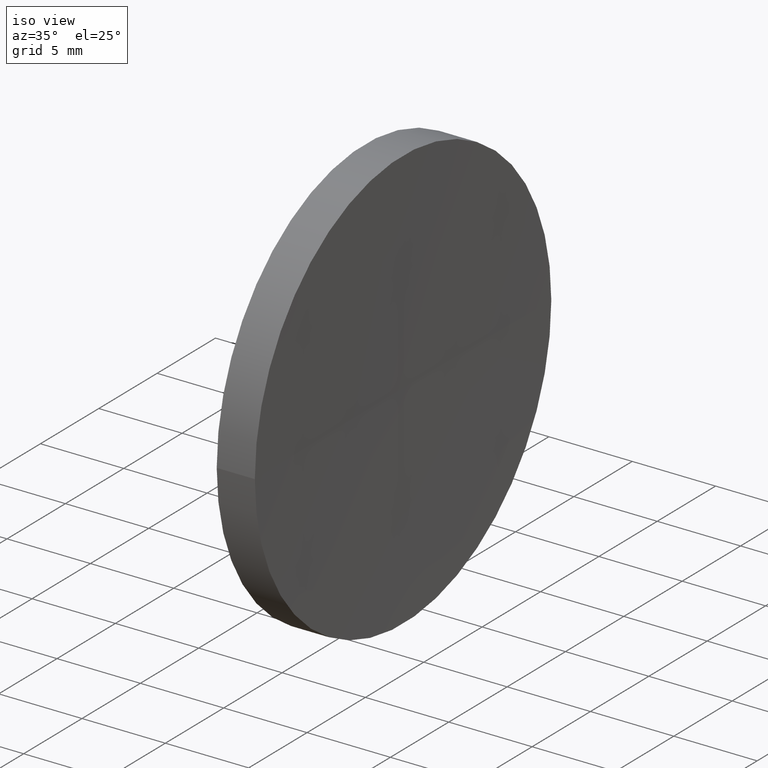
[diagram: clean part render]
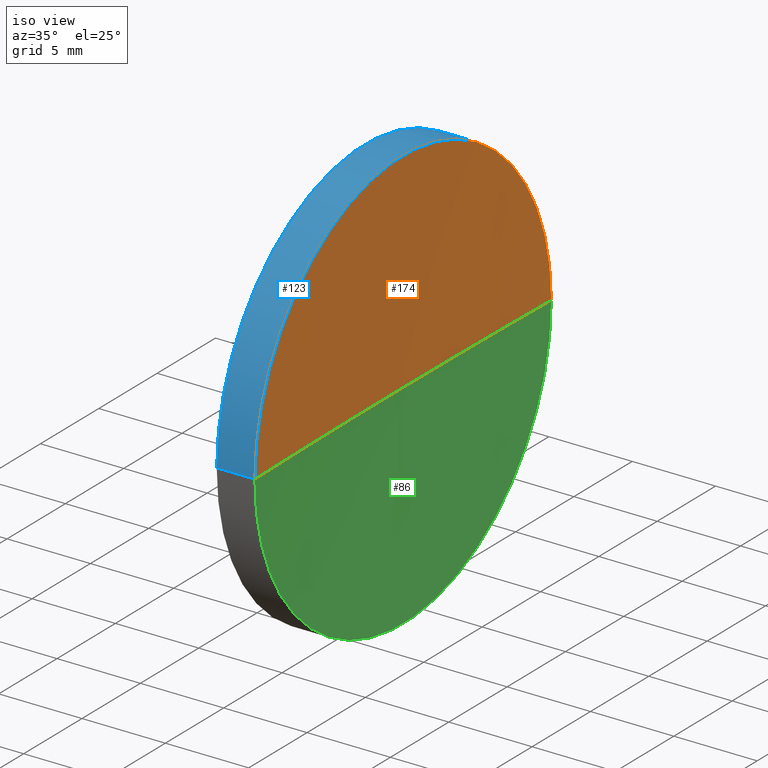
[diagram: same view with three faces highlighted in distinct colors, each labeled with its STEP entity id]
A machine part, iso view with three faces highlighted in distinct colors.
Their STEP definitions:

[orange] entity #174 — the highlighted spherical surface has radius 561.6 mm.
#4 = DIRECTION ( 'NONE',  ( 1.000000000000000000, 0.0000000000000000000, 0.0000000000000000000 ) ) ;
#5 = FACE_OUTER_BOUND ( 'NONE', #9, .T. ) ;
#9 = EDGE_LOOP ( 'NONE', ( #58, #71, #144 ) ) ;
#14 = EDGE_CURVE ( 'NONE', #94, #39, #139, .T. ) ;
#24 = CIRCLE ( 'NONE', #57, 12.70000000000007900 ) ;
#25 = CARTESIAN_POINT ( 'NONE',  ( 97.23406135539724500, 64.87808229838934400, 0.0000000000000000000 ) ) ;
#32 = CARTESIAN_POINT ( 'NONE',  ( 658.6904443452072000, 52.17808229838973200, 0.0000000000000000000 ) ) ;
#39 = VERTEX_POINT ( 'NONE', #128 ) ;
#56 = AXIS2_PLACEMENT_3D ( 'NONE', #192, #179, #133 ) ;
#57 = AXIS2_PLACEMENT_3D ( 'NONE', #183, #152, #78 ) ;
#58 = ORIENTED_EDGE ( 'NONE', *, *, #88, .F. ) ;
#71 = ORIENTED_EDGE ( 'NONE', *, *, #101, .T. ) ;
#75 = AXIS2_PLACEMENT_3D ( 'NONE', #32, #79, #4 ) ;
#78 = DIRECTION ( 'NONE',  ( 0.0000000000000000000, -1.000000000000000000, 0.0000000000000000000 ) ) ;
#79 = DIRECTION ( 'NONE',  ( 0.0000000000000000000, -0.0000000000000000000, 1.000000000000000000 ) ) ;
#81 = CIRCLE ( 'NONE', #175, 561.6000000000001400 ) ;
#85 = VERTEX_POINT ( 'NONE', #190 ) ;
#88 = EDGE_CURVE ( 'NONE', #85, #94, #24, .T. ) ;
#94 = VERTEX_POINT ( 'NONE', #25 ) ;
#101 = EDGE_CURVE ( 'NONE', #85, #39, #81, .T. ) ;
#107 = DIRECTION ( 'NONE',  ( 0.0000000000000000000, 1.000000000000000000, 1.224646799147353200E-016 ) ) ;
#121 = CARTESIAN_POINT ( 'NONE',  ( 658.6904443452072000, 52.17808229838973200, 0.0000000000000000000 ) ) ;
#128 = CARTESIAN_POINT ( 'NONE',  ( 97.09044434520708900, 52.17808229838949100, 0.0000000000000000000 ) ) ;
#133 = DIRECTION ( 'NONE',  ( -3.953785700232038400E-016, 1.000000000000000000, 0.0000000000000000000 ) ) ;
#136 = SPHERICAL_SURFACE ( 'NONE', #56, 561.6000000000001400 ) ;
#139 = CIRCLE ( 'NONE', #75, 561.6000000000000200 ) ;
#144 = ORIENTED_EDGE ( 'NONE', *, *, #14, .F. ) ;
#152 = DIRECTION ( 'NONE',  ( -1.000000000000000000, -4.877362175853829600E-016, -0.0000000000000000000 ) ) ;
#170 = DIRECTION ( 'NONE',  ( -5.973045976941762700E-032, 1.224646799147353200E-016, -1.000000000000000000 ) ) ;
#174 = ADVANCED_FACE ( 'NONE', ( #5 ), #136, .F. ) ;
#175 = AXIS2_PLACEMENT_3D ( 'NONE', #121, #170, #107 ) ;
#179 = DIRECTION ( 'NONE',  ( 0.0000000000000000000, 0.0000000000000000000, -1.000000000000000000 ) ) ;
#183 = CARTESIAN_POINT ( 'NONE',  ( 97.23406135539724500, 52.17808229838991700, 0.0000000000000000000 ) ) ;
#190 = CARTESIAN_POINT ( 'NONE',  ( 97.23406135539724500, 39.47808229839003500, -1.555301434917068800E-015 ) ) ;
#192 = CARTESIAN_POINT ( 'NONE',  ( 658.6904443452072000, 52.17808229838973200, 0.0000000000000000000 ) ) ;

[blue] entity #123 — the highlighted cylindrical surface (partial cylindrical patch) has radius 12.7 mm, axis along (-1, -0, -0).
#6 = DIRECTION ( 'NONE',  ( -1.000000000000000000, -4.877362175853829600E-016, -0.0000000000000000000 ) ) ;
#18 = DIRECTION ( 'NONE',  ( 0.0000000000000000000, -1.000000000000000000, 0.0000000000000000000 ) ) ;
#23 = AXIS2_PLACEMENT_3D ( 'NONE', #84, #6, #18 ) ;
#24 = CIRCLE ( 'NONE', #57, 12.70000000000007900 ) ;
#25 = CARTESIAN_POINT ( 'NONE',  ( 97.23406135539724500, 64.87808229838934400, 0.0000000000000000000 ) ) ;
#29 = AXIS2_PLACEMENT_3D ( 'NONE', #132, #111, #177 ) ;
#30 = CYLINDRICAL_SURFACE ( 'NONE', #29, 12.70000000000000300 ) ;
#36 = CARTESIAN_POINT ( 'NONE',  ( 89.85865645361708700, 39.47808229838990700, 0.0000000000000000000 ) ) ;
#40 = VERTEX_POINT ( 'NONE', #188 ) ;
#47 = LINE ( 'NONE', #36, #106 ) ;
#54 = EDGE_CURVE ( 'NONE', #40, #184, #99, .T. ) ;
#57 = AXIS2_PLACEMENT_3D ( 'NONE', #183, #152, #78 ) ;
#76 = ORIENTED_EDGE ( 'NONE', *, *, #80, .F. ) ;
#78 = DIRECTION ( 'NONE',  ( 0.0000000000000000000, -1.000000000000000000, 0.0000000000000000000 ) ) ;
#80 = EDGE_CURVE ( 'NONE', #85, #40, #47, .T. ) ;
#84 = CARTESIAN_POINT ( 'NONE',  ( 94.94682658132261100, 52.17808229838991000, 0.0000000000000000000 ) ) ;
#85 = VERTEX_POINT ( 'NONE', #190 ) ;
#88 = EDGE_CURVE ( 'NONE', #85, #94, #24, .T. ) ;
#94 = VERTEX_POINT ( 'NONE', #25 ) ;
#99 = CIRCLE ( 'NONE', #23, 12.70000000000000300 ) ;
#100 = DIRECTION ( 'NONE',  ( -1.000000000000000000, -4.877362175853829600E-016, -0.0000000000000000000 ) ) ;
#104 = CARTESIAN_POINT ( 'NONE',  ( 89.85865645361708700, 64.87808229838991300, 1.555301434917138800E-015 ) ) ;
#106 = VECTOR ( 'NONE', #100, 1000.000000000000000 ) ;
#108 = FACE_OUTER_BOUND ( 'NONE', #143, .T. ) ;
#111 = DIRECTION ( 'NONE',  ( -1.000000000000000000, -4.877362175853829600E-016, -0.0000000000000000000 ) ) ;
#113 = ORIENTED_EDGE ( 'NONE', *, *, #88, .T. ) ;
#123 = ADVANCED_FACE ( 'NONE', ( #108 ), #30, .T. ) ;
#130 = DIRECTION ( 'NONE',  ( -1.000000000000000000, -4.877362175853829600E-016, -0.0000000000000000000 ) ) ;
#132 = CARTESIAN_POINT ( 'NONE',  ( 89.85865645361708700, 52.17808229838991000, 0.0000000000000000000 ) ) ;
#141 = ORIENTED_EDGE ( 'NONE', *, *, #54, .F. ) ;
#143 = EDGE_LOOP ( 'NONE', ( #113, #157, #141, #76 ) ) ;
#145 = CARTESIAN_POINT ( 'NONE',  ( 94.94682658132265400, 64.87808229838628900, 0.0000000000000000000 ) ) ;
#152 = DIRECTION ( 'NONE',  ( -1.000000000000000000, -4.877362175853829600E-016, -0.0000000000000000000 ) ) ;
#157 = ORIENTED_EDGE ( 'NONE', *, *, #182, .T. ) ;
#163 = LINE ( 'NONE', #104, #181 ) ;
#177 = DIRECTION ( 'NONE',  ( 0.0000000000000000000, -1.000000000000000000, 0.0000000000000000000 ) ) ;
#181 = VECTOR ( 'NONE', #130, 1000.000000000000000 ) ;
#182 = EDGE_CURVE ( 'NONE', #94, #184, #163, .T. ) ;
#183 = CARTESIAN_POINT ( 'NONE',  ( 97.23406135539724500, 52.17808229838991700, 0.0000000000000000000 ) ) ;
#184 = VERTEX_POINT ( 'NONE', #145 ) ;
#188 = CARTESIAN_POINT ( 'NONE',  ( 94.94682658132265400, 39.47808229839580500, -1.555301434916695900E-015 ) ) ;
#190 = CARTESIAN_POINT ( 'NONE',  ( 97.23406135539724500, 39.47808229839003500, -1.555301434917068800E-015 ) ) ;

[green] entity #86 — the highlighted spherical surface has radius 561.6 mm.
#3 = DIRECTION ( 'NONE',  ( -3.953785700232038400E-016, 1.000000000000000000, 0.0000000000000000000 ) ) ;
#4 = DIRECTION ( 'NONE',  ( 1.000000000000000000, 0.0000000000000000000, 0.0000000000000000000 ) ) ;
#14 = EDGE_CURVE ( 'NONE', #94, #39, #139, .T. ) ;
#25 = CARTESIAN_POINT ( 'NONE',  ( 97.23406135539724500, 64.87808229838934400, 0.0000000000000000000 ) ) ;
#26 = DIRECTION ( 'NONE',  ( -1.000000000000000000, -4.877362175853829600E-016, -0.0000000000000000000 ) ) ;
#32 = CARTESIAN_POINT ( 'NONE',  ( 658.6904443452072000, 52.17808229838973200, 0.0000000000000000000 ) ) ;
#33 = FACE_OUTER_BOUND ( 'NONE', #166, .T. ) ;
#39 = VERTEX_POINT ( 'NONE', #128 ) ;
#43 = CARTESIAN_POINT ( 'NONE',  ( 97.23406135539724500, 52.17808229838991700, 0.0000000000000000000 ) ) ;
#45 = ORIENTED_EDGE ( 'NONE', *, *, #14, .T. ) ;
#46 = DIRECTION ( 'NONE',  ( 0.0000000000000000000, 0.0000000000000000000, -1.000000000000000000 ) ) ;
#75 = AXIS2_PLACEMENT_3D ( 'NONE', #32, #79, #4 ) ;
#79 = DIRECTION ( 'NONE',  ( 0.0000000000000000000, -0.0000000000000000000, 1.000000000000000000 ) ) ;
#81 = CIRCLE ( 'NONE', #175, 561.6000000000001400 ) ;
#85 = VERTEX_POINT ( 'NONE', #190 ) ;
#86 = ADVANCED_FACE ( 'NONE', ( #33 ), #159, .F. ) ;
#91 = ORIENTED_EDGE ( 'NONE', *, *, #101, .F. ) ;
#94 = VERTEX_POINT ( 'NONE', #25 ) ;
#101 = EDGE_CURVE ( 'NONE', #85, #39, #81, .T. ) ;
#107 = DIRECTION ( 'NONE',  ( 0.0000000000000000000, 1.000000000000000000, 1.224646799147353200E-016 ) ) ;
#121 = CARTESIAN_POINT ( 'NONE',  ( 658.6904443452072000, 52.17808229838973200, 0.0000000000000000000 ) ) ;
#122 = ORIENTED_EDGE ( 'NONE', *, *, #124, .F. ) ;
#124 = EDGE_CURVE ( 'NONE', #94, #85, #178, .T. ) ;
#128 = CARTESIAN_POINT ( 'NONE',  ( 97.09044434520708900, 52.17808229838949100, 0.0000000000000000000 ) ) ;
#138 = AXIS2_PLACEMENT_3D ( 'NONE', #167, #46, #3 ) ;
#139 = CIRCLE ( 'NONE', #75, 561.6000000000000200 ) ;
#159 = SPHERICAL_SURFACE ( 'NONE', #138, 561.6000000000001400 ) ;
#164 = DIRECTION ( 'NONE',  ( 0.0000000000000000000, -1.000000000000000000, 0.0000000000000000000 ) ) ;
#166 = EDGE_LOOP ( 'NONE', ( #91, #122, #45 ) ) ;
#167 = CARTESIAN_POINT ( 'NONE',  ( 658.6904443452072000, 52.17808229838973200, 0.0000000000000000000 ) ) ;
#170 = DIRECTION ( 'NONE',  ( -5.973045976941762700E-032, 1.224646799147353200E-016, -1.000000000000000000 ) ) ;
#175 = AXIS2_PLACEMENT_3D ( 'NONE', #121, #170, #107 ) ;
#178 = CIRCLE ( 'NONE', #185, 12.70000000000007900 ) ;
#185 = AXIS2_PLACEMENT_3D ( 'NONE', #43, #26, #164 ) ;
#190 = CARTESIAN_POINT ( 'NONE',  ( 97.23406135539724500, 39.47808229839003500, -1.555301434917068800E-015 ) ) ;